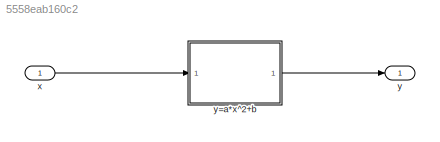
MODEL slx_5558eab160c2
KIND model
CONFIG AbsTol = auto
CONFIG FixedStep = auto
CONFIG MaxStep = auto
CONFIG MinStep = auto
CONFIG RelTol = 1e-3
CONFIG SampleTimeConstraint = Unconstrained
CONFIG Solver = VariableStepAuto
CONFIG SolverMode = Auto
CONFIG SolverName = VariableStepAuto
CONFIG StartTime = 0.0
CONFIG StopTime = 10.0
BLOCK [Inport] x
  IconDisplay = Port number
BLOCK [Outport] y 
  IconDisplay = Port number
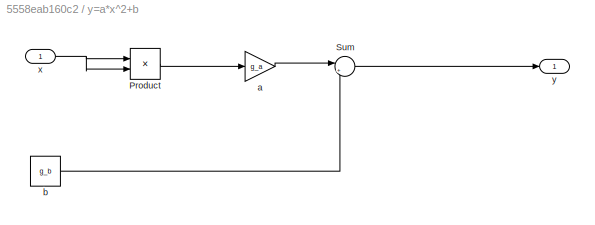
BLOCK [SubSystem] y=a*x^2+b
  Ports = [1, 1]
  RequestExecContextInheritance = off
  Variant = off
BLOCK [Product] y=a*x^2+b/Product
  InputSameDT = off
  OutDataTypeStr = Inherit: Inherit via internal rule
  Ports = [2, 1]
  RndMeth = Floor
  SaturateOnIntegerOverflow = off
BLOCK [Sum] y=a*x^2+b/Sum
  IconShape = round
  InputSameDT = off
  Inputs = |++
  OutDataTypeStr = Inherit: Inherit via internal rule
  Ports = [2, 1]
  SaturateOnIntegerOverflow = off
BLOCK [Gain] y=a*x^2+b/a
  Gain = g_a
  OutDataTypeStr = Inherit: Inherit via internal rule
  ParamDataTypeStr = Inherit: Inherit via internal rule
  SaturateOnIntegerOverflow = off
BLOCK [Constant] y=a*x^2+b/b
  Value = g_b
BLOCK [Inport] y=a*x^2+b/x
  IconDisplay = Port number
BLOCK [Outport] y=a*x^2+b/y 
  IconDisplay = Port number
LINE x:1 -> y=a*x^2+b:1
LINE y=a*x^2+b/Product:1 -> y=a*x^2+b/a:1
LINE y=a*x^2+b/Sum:1 -> y=a*x^2+b/y :1
LINE y=a*x^2+b/a:1 -> y=a*x^2+b/Sum:1
LINE y=a*x^2+b/b:1 -> y=a*x^2+b/Sum:2
NET y=a*x^2+b/x:1 -> y=a*x^2+b/Product:1, y=a*x^2+b/Product:2
LINE y=a*x^2+b:1 -> y :1
note: NET lines group one-source signal fan-out (src -> all destinations, sorted); 1:1 wires keep LINE
